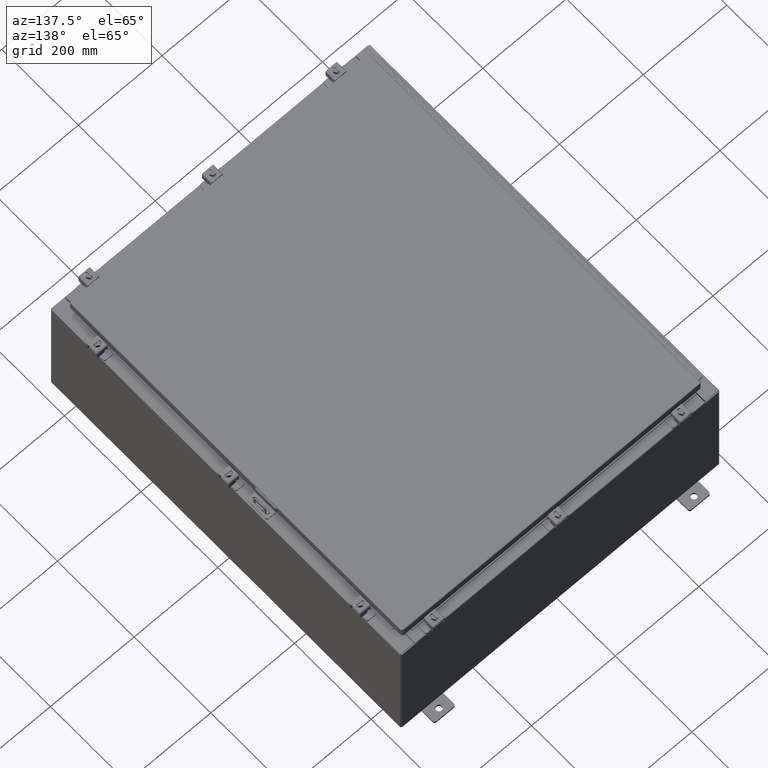
[diagram: clean part render]
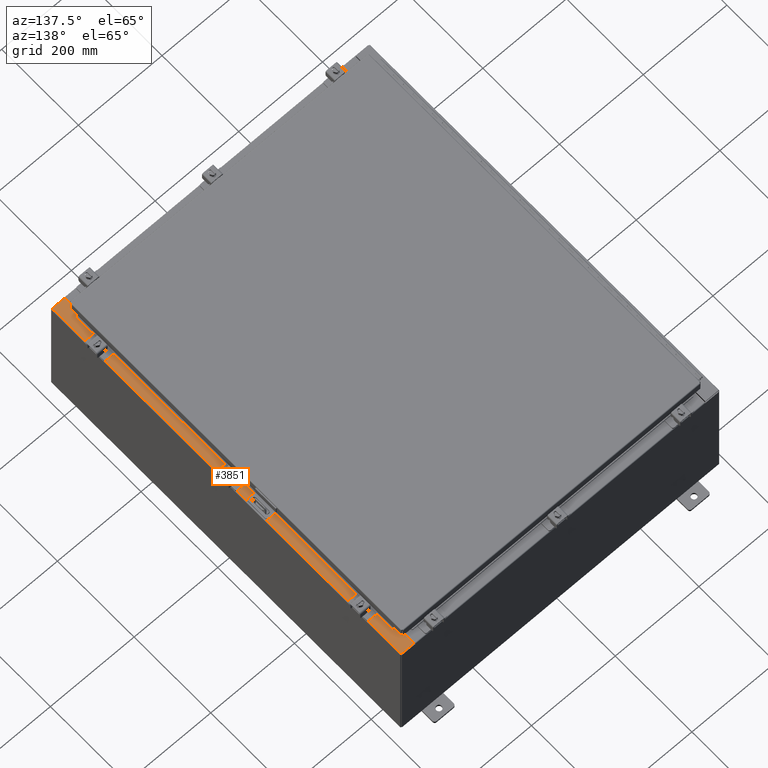
[diagram: same view with one face highlighted and labeled with its STEP entity id]
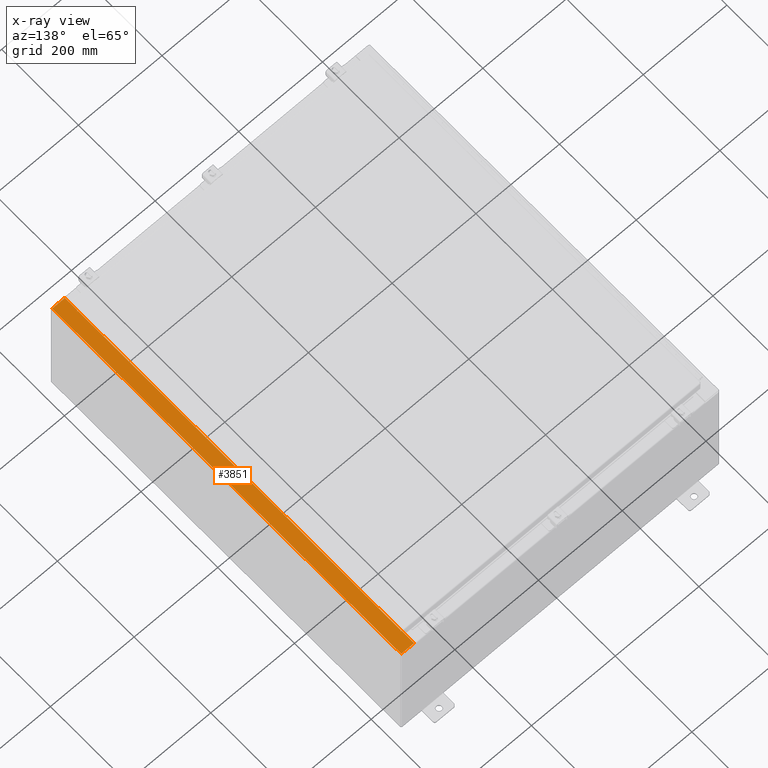
[diagram: x-ray of the same camera — body ghosted, the highlighted face saturated]
A machine part, auxiliary view. The second image highlights one B-rep face of the part: STEP entity #3851.
The next image is the same camera in x-ray: the body ghosted, the highlighted face saturated — about 0% of this face is hidden behind the body in this view.
In plain terms, the highlighted planar face has unit normal (-0, 0, -1).
Its self-contained STEP definition (entity closure, byte-faithful):
#229 = CARTESIAN_POINT ( 'NONE',  ( 13.69970000000004100, 0.0000000000000000000, 11.92530000000000900 ) ) ;
#283 = AXIS2_PLACEMENT_3D ( 'NONE', #15162, #14684, #40853 ) ;
#428 = VERTEX_POINT ( 'NONE', #2789 ) ;
#928 = LINE ( 'NONE', #22977, #42167 ) ;
#2694 = ORIENTED_EDGE ( 'NONE', *, *, #19941, .T. ) ;
#2789 = CARTESIAN_POINT ( 'NONE',  ( 14.91230000000003900, 17.92530000000000000, 11.92530000000000000 ) ) ;
#3627 = CARTESIAN_POINT ( 'NONE',  ( 13.69970000000004100, -16.63110000000000400, 11.92530000000000900 ) ) ;
#3834 = ORIENTED_EDGE ( 'NONE', *, *, #6006, .F. ) ;
#3851 = ADVANCED_FACE ( 'NONE', ( #15676 ), #34381, .F. ) ;
#4991 = CARTESIAN_POINT ( 'NONE',  ( 13.71270000000004300, 16.59375000000000000, 11.92530000000000900 ) ) ;
#5553 = VECTOR ( 'NONE', #15235, 39.37007874015748100 ) ;
#5938 = ORIENTED_EDGE ( 'NONE', *, *, #13549, .F. ) ;
#6006 = EDGE_CURVE ( 'NONE', #8956, #39454, #40310, .T. ) ;
#6452 = CARTESIAN_POINT ( 'NONE',  ( 13.75005000000004300, 16.63110000000000000, 11.92530000000000900 ) ) ;
#6813 = EDGE_CURVE ( 'NONE', #8956, #23388, #8367, .T. ) ;
#6865 = VERTEX_POINT ( 'NONE', #20480 ) ;
#7137 = LINE ( 'NONE', #229, #41649 ) ;
#7526 = CARTESIAN_POINT ( 'NONE',  ( 13.71270000000004300, -16.59375000000000000, 11.92530000000000900 ) ) ;
#7577 = VECTOR ( 'NONE', #14352, 39.37007874015748100 ) ;
#8367 = LINE ( 'NONE', #40006, #23005 ) ;
#8696 = EDGE_CURVE ( 'NONE', #13620, #31004, #25964, .T. ) ;
#8956 = VERTEX_POINT ( 'NONE', #3627 ) ;
#9093 = LINE ( 'NONE', #15735, #34709 ) ;
#9203 = ORIENTED_EDGE ( 'NONE', *, *, #35589, .T. ) ;
#9599 = AXIS2_PLACEMENT_3D ( 'NONE', #31985, #11997, #35368 ) ;
#10540 = VERTEX_POINT ( 'NONE', #22892 ) ;
#11997 = DIRECTION ( 'NONE',  ( 7.132762385546384700E-015, 0.0000000000000000000, 1.000000000000000000 ) ) ;
#12014 = ORIENTED_EDGE ( 'NONE', *, *, #26394, .F. ) ;
#12730 = CARTESIAN_POINT ( 'NONE',  ( 13.71270000000004300, -16.59375000000000000, 11.92530000000000900 ) ) ;
#13152 = DIRECTION ( 'NONE',  ( -1.000000000000000000, 4.340572780399910900E-014, 0.0000000000000000000 ) ) ;
#13549 = EDGE_CURVE ( 'NONE', #21157, #34802, #16252, .T. ) ;
#13620 = VERTEX_POINT ( 'NONE', #31315 ) ;
#13714 = CARTESIAN_POINT ( 'NONE',  ( 13.75005000000004300, -16.63110000000000000, 11.92530000000000900 ) ) ;
#14352 = DIRECTION ( 'NONE',  ( 1.000000000000000000, 0.0000000000000000000, -7.132762385546384700E-015 ) ) ;
#14684 = DIRECTION ( 'NONE',  ( -7.132762385546384700E-015, 0.0000000000000000000, -1.000000000000000000 ) ) ;
#15162 = CARTESIAN_POINT ( 'NONE',  ( 8.532114493236863100E-014, 0.0000000000000000000, 11.92530000000010800 ) ) ;
#15196 = DIRECTION ( 'NONE',  ( 1.000000000000000000, 4.340572780399910900E-014, 0.0000000000000000000 ) ) ;
#15235 = DIRECTION ( 'NONE',  ( 1.000000000000000000, 0.0000000000000000000, 0.0000000000000000000 ) ) ;
#15676 = FACE_OUTER_BOUND ( 'NONE', #42123, .T. ) ;
#15735 = CARTESIAN_POINT ( 'NONE',  ( 13.75005000000004300, -16.59375000000000000, 11.92530000000000900 ) ) ;
#15806 = CARTESIAN_POINT ( 'NONE',  ( 13.69970000000004100, -16.63110000000000400, 11.92530000000000900 ) ) ;
#15882 = CARTESIAN_POINT ( 'NONE',  ( 13.75005000000004300, 16.61242500000000200, 11.92530000000000900 ) ) ;
#15912 = VECTOR ( 'NONE', #19890, 39.37007874015748100 ) ;
#16106 = ORIENTED_EDGE ( 'NONE', *, *, #30864, .F. ) ;
#16252 = LINE ( 'NONE', #7526, #40821 ) ;
#16472 = LINE ( 'NONE', #23434, #7577 ) ;
#17091 = VECTOR ( 'NONE', #13152, 39.37007874015748100 ) ;
#17703 = CARTESIAN_POINT ( 'NONE',  ( 13.69970000000004100, 17.92530000000000000, 11.92530000000000900 ) ) ;
#18091 = EDGE_CURVE ( 'NONE', #6865, #21157, #9093, .T. ) ;
#19260 = DIRECTION ( 'NONE',  ( 1.000000000000000000, 0.0000000000000000000, 0.0000000000000000000 ) ) ;
#19890 = DIRECTION ( 'NONE',  ( -0.0000000000000000000, -1.000000000000000000, -0.0000000000000000000 ) ) ;
#19941 = EDGE_CURVE ( 'NONE', #25520, #31004, #7137, .T. ) ;
#20018 = ORIENTED_EDGE ( 'NONE', *, *, #18091, .F. ) ;
#20480 = CARTESIAN_POINT ( 'NONE',  ( 13.75005000000004300, -16.59375000000000000, 11.92530000000000900 ) ) ;
#21157 = VERTEX_POINT ( 'NONE', #12730 ) ;
#21399 = DIRECTION ( 'NONE',  ( 0.0000000000000000000, -1.000000000000000000, 0.0000000000000000000 ) ) ;
#22358 = CARTESIAN_POINT ( 'NONE',  ( 13.69970000000004100, -17.92530000000000000, 11.92530000000000900 ) ) ;
#22476 = DIRECTION ( 'NONE',  ( -1.000000000000000000, 0.0000000000000000000, 0.0000000000000000000 ) ) ;
#22892 = CARTESIAN_POINT ( 'NONE',  ( 14.91230000000003900, -17.92530000000000000, 11.92530000000000000 ) ) ;
#22977 = CARTESIAN_POINT ( 'NONE',  ( 8.532114493236863100E-014, 17.92530000000000000, 11.92530000000010800 ) ) ;
#23005 = VECTOR ( 'NONE', #21399, 39.37007874015748100 ) ;
#23388 = VERTEX_POINT ( 'NONE', #22358 ) ;
#23434 = CARTESIAN_POINT ( 'NONE',  ( 8.532114493236863100E-014, -17.92530000000000000, 11.92530000000010800 ) ) ;
#23721 = CIRCLE ( 'NONE', #9599, 0.01867499999999949400 ) ;
#25221 = EDGE_CURVE ( 'NONE', #23388, #10540, #16472, .T. ) ;
#25520 = VERTEX_POINT ( 'NONE', #17703 ) ;
#25964 = LINE ( 'NONE', #6452, #17091 ) ;
#26133 = CARTESIAN_POINT ( 'NONE',  ( 13.69970000000004100, 16.63110000000000400, 11.92530000000000900 ) ) ;
#26394 = EDGE_CURVE ( 'NONE', #34802, #36467, #40052, .T. ) ;
#27292 = ORIENTED_EDGE ( 'NONE', *, *, #25221, .T. ) ;
#27406 = ORIENTED_EDGE ( 'NONE', *, *, #31085, .F. ) ;
#27593 = ORIENTED_EDGE ( 'NONE', *, *, #8696, .F. ) ;
#28796 = CARTESIAN_POINT ( 'NONE',  ( 13.71270000000004300, 16.59375000000000000, 11.92530000000000900 ) ) ;
#30331 = VECTOR ( 'NONE', #15196, 39.37007874015748100 ) ;
#30864 = EDGE_CURVE ( 'NONE', #39454, #6865, #23721, .T. ) ;
#31004 = VERTEX_POINT ( 'NONE', #26133 ) ;
#31085 = EDGE_CURVE ( 'NONE', #428, #10540, #41996, .T. ) ;
#31188 = CARTESIAN_POINT ( 'NONE',  ( 13.75005000000004300, 16.59375000000000000, 11.92530000000000900 ) ) ;
#31315 = CARTESIAN_POINT ( 'NONE',  ( 13.75005000000004300, 16.63110000000000000, 11.92530000000000900 ) ) ;
#31985 = CARTESIAN_POINT ( 'NONE',  ( 13.75005000000004300, -16.61242500000000200, 11.92530000000000900 ) ) ;
#33123 = DIRECTION ( 'NONE',  ( 0.0000000000000000000, -1.000000000000000000, 0.0000000000000000000 ) ) ;
#34220 = DIRECTION ( 'NONE',  ( -0.0000000000000000000, 1.000000000000000000, -0.0000000000000000000 ) ) ;
#34381 = PLANE ( 'NONE',  #283 ) ;
#34445 = CIRCLE ( 'NONE', #35250, 0.01867499999999949400 ) ;
#34709 = VECTOR ( 'NONE', #22476, 39.37007874015748100 ) ;
#34802 = VERTEX_POINT ( 'NONE', #4991 ) ;
#35016 = ORIENTED_EDGE ( 'NONE', *, *, #39882, .F. ) ;
#35250 = AXIS2_PLACEMENT_3D ( 'NONE', #15882, #39258, #19260 ) ;
#35368 = DIRECTION ( 'NONE',  ( 1.000000000000000000, 0.0000000000000000000, 0.0000000000000000000 ) ) ;
#35589 = EDGE_CURVE ( 'NONE', #428, #25520, #928, .T. ) ;
#36467 = VERTEX_POINT ( 'NONE', #31188 ) ;
#36526 = CARTESIAN_POINT ( 'NONE',  ( 14.91230000000003900, -17.92530000000000000, 11.92530000000000000 ) ) ;
#39258 = DIRECTION ( 'NONE',  ( 7.132762385546384700E-015, 0.0000000000000000000, 1.000000000000000000 ) ) ;
#39454 = VERTEX_POINT ( 'NONE', #13714 ) ;
#39637 = DIRECTION ( 'NONE',  ( -1.000000000000000000, 0.0000000000000000000, 7.132762385546384700E-015 ) ) ;
#39882 = EDGE_CURVE ( 'NONE', #36467, #13620, #34445, .T. ) ;
#40006 = CARTESIAN_POINT ( 'NONE',  ( 13.69970000000004100, 0.0000000000000000000, 11.92530000000000900 ) ) ;
#40010 = ORIENTED_EDGE ( 'NONE', *, *, #6813, .T. ) ;
#40052 = LINE ( 'NONE', #28796, #5553 ) ;
#40310 = LINE ( 'NONE', #15806, #30331 ) ;
#40821 = VECTOR ( 'NONE', #34220, 39.37007874015748100 ) ;
#40853 = DIRECTION ( 'NONE',  ( -1.000000000000000000, 0.0000000000000000000, 7.132762385546384700E-015 ) ) ;
#41649 = VECTOR ( 'NONE', #33123, 39.37007874015748100 ) ;
#41996 = LINE ( 'NONE', #36526, #15912 ) ;
#42123 = EDGE_LOOP ( 'NONE', ( #3834, #40010, #27292, #27406, #9203, #2694, #27593, #35016, #12014, #5938, #20018, #16106 ) ) ;
#42167 = VECTOR ( 'NONE', #39637, 39.37007874015748100 ) ;